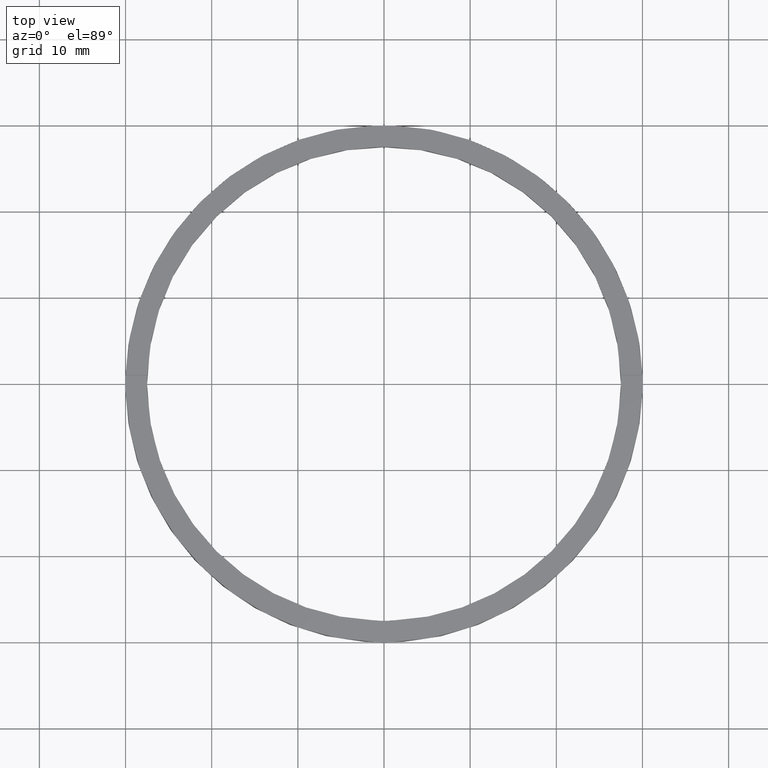
[diagram: clean part render]
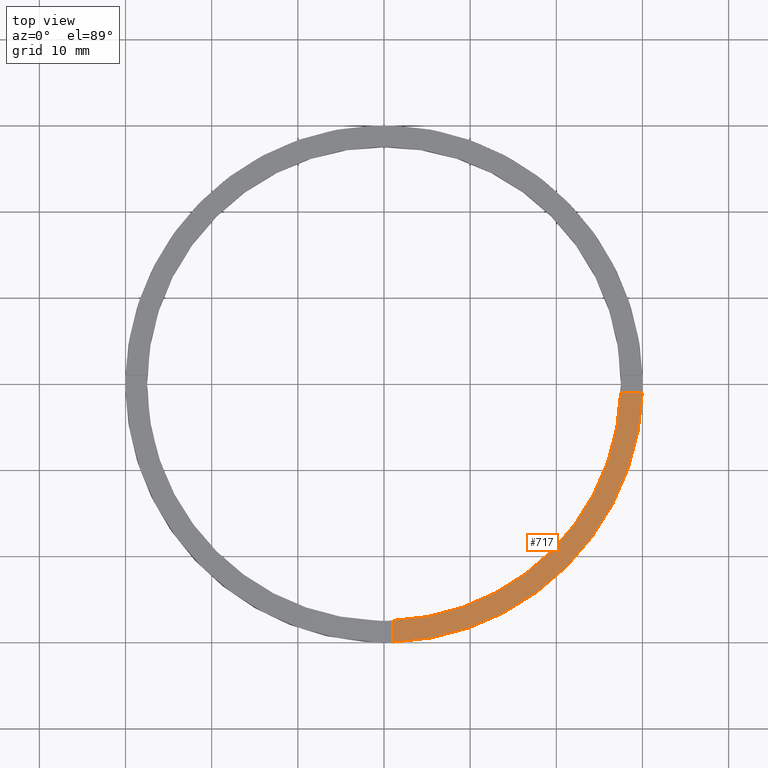
[diagram: same view with one face highlighted and labeled with its STEP entity id]
A machine part, top view. The second image highlights one B-rep face of the part: STEP entity #717.
In plain terms, the highlighted planar face has unit normal (0, 0, 1).
Its self-contained STEP definition (entity closure, byte-faithful):
#45 = AXIS2_PLACEMENT_3D ( 'NONE', #59, #265, #444 ) ;
#50 = DIRECTION ( 'NONE',  ( -1.301042606982605074E-16, 1.000000000000000000, -0.000000000000000000 ) ) ;
#59 = CARTESIAN_POINT ( 'NONE',  ( 0.000000000000000000, 0.000000000000000000, 3.000000000000000000 ) ) ;
#64 = CIRCLE ( 'NONE', #580, 30.00000000000000000 ) ;
#85 = FACE_OUTER_BOUND ( 'NONE', #636, .T. ) ;
#132 = ORIENTED_EDGE ( 'NONE', *, *, #516, .F. ) ;
#177 = VERTEX_POINT ( 'NONE', #213 ) ;
#182 = CARTESIAN_POINT ( 'NONE',  ( 0.9999999999998397948, -20.00000000000017764, 3.000000000000000000 ) ) ;
#213 = CARTESIAN_POINT ( 'NONE',  ( 29.98332870112989212, -1.000000000000156097, 3.000000000000000000 ) ) ;
#231 = CARTESIAN_POINT ( 'NONE',  ( 0.000000000000000000, 0.000000000000000000, 3.000000000000000000 ) ) ;
#241 = VERTEX_POINT ( 'NONE', #519 ) ;
#242 = VECTOR ( 'NONE', #50, 1000.000000000000000 ) ;
#245 = EDGE_CURVE ( 'NONE', #253, #177, #292, .T. ) ;
#253 = VERTEX_POINT ( 'NONE', #330 ) ;
#265 = DIRECTION ( 'NONE',  ( 0.000000000000000000, 0.000000000000000000, 1.000000000000000000 ) ) ;
#275 = CARTESIAN_POINT ( 'NONE',  ( 19.99999999999999289, -1.000000000000156763, 3.000000000000000000 ) ) ;
#277 = CARTESIAN_POINT ( 'NONE',  ( 0.9999999999998411271, -29.98332870112990278, 3.000000000000000000 ) ) ;
#292 = LINE ( 'NONE', #275, #297 ) ;
#297 = VECTOR ( 'NONE', #564, 1000.000000000000000 ) ;
#321 = EDGE_CURVE ( 'NONE', #241, #253, #412, .T. ) ;
#330 = CARTESIAN_POINT ( 'NONE',  ( 27.48181216732258392, -1.000000000000156319, 3.000000000000000000 ) ) ;
#335 = PLANE ( 'NONE',  #376 ) ;
#376 = AXIS2_PLACEMENT_3D ( 'NONE', #231, #524, #683 ) ;
#391 = CARTESIAN_POINT ( 'NONE',  ( 0.000000000000000000, 0.000000000000000000, 3.000000000000000000 ) ) ;
#412 = CIRCLE ( 'NONE', #45, 27.50000000000000000 ) ;
#444 = DIRECTION ( 'NONE',  ( 1.000000000000000000, 0.000000000000000000, 0.000000000000000000 ) ) ;
#498 = ORIENTED_EDGE ( 'NONE', *, *, #321, .F. ) ;
#516 = EDGE_CURVE ( 'NONE', #756, #241, #767, .T. ) ;
#519 = CARTESIAN_POINT ( 'NONE',  ( 0.9999999999998406830, -27.48181216732259458, 3.000000000000000000 ) ) ;
#524 = DIRECTION ( 'NONE',  ( 0.000000000000000000, 0.000000000000000000, 1.000000000000000000 ) ) ;
#564 = DIRECTION ( 'NONE',  ( 1.000000000000000000, 6.505213034913025371E-17, 0.000000000000000000 ) ) ;
#565 = DIRECTION ( 'NONE',  ( 0.000000000000000000, 0.000000000000000000, 1.000000000000000000 ) ) ;
#580 = AXIS2_PLACEMENT_3D ( 'NONE', #391, #565, #689 ) ;
#632 = ORIENTED_EDGE ( 'NONE', *, *, #245, .F. ) ;
#636 = EDGE_LOOP ( 'NONE', ( #632, #498, #132, #780 ) ) ;
#683 = DIRECTION ( 'NONE',  ( 1.000000000000000000, 0.000000000000000000, -0.000000000000000000 ) ) ;
#689 = DIRECTION ( 'NONE',  ( 1.000000000000000000, 0.000000000000000000, 0.000000000000000000 ) ) ;
#717 = ADVANCED_FACE ( 'NONE', ( #85 ), #335, .T. ) ;
#756 = VERTEX_POINT ( 'NONE', #277 ) ;
#757 = EDGE_CURVE ( 'NONE', #756, #177, #64, .T. ) ;
#767 = LINE ( 'NONE', #182, #242 ) ;
#780 = ORIENTED_EDGE ( 'NONE', *, *, #757, .T. ) ;